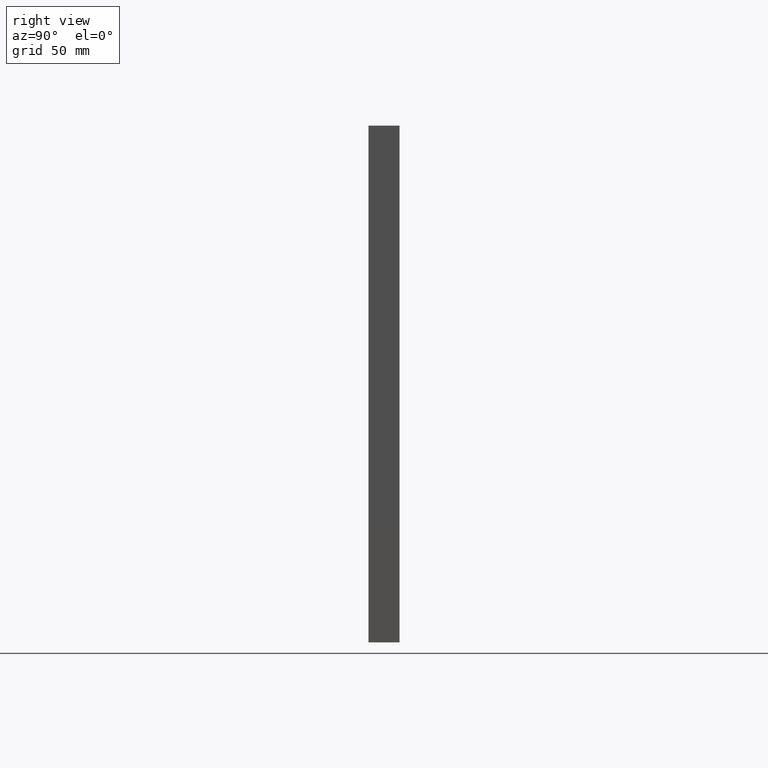
[diagram: clean part render]
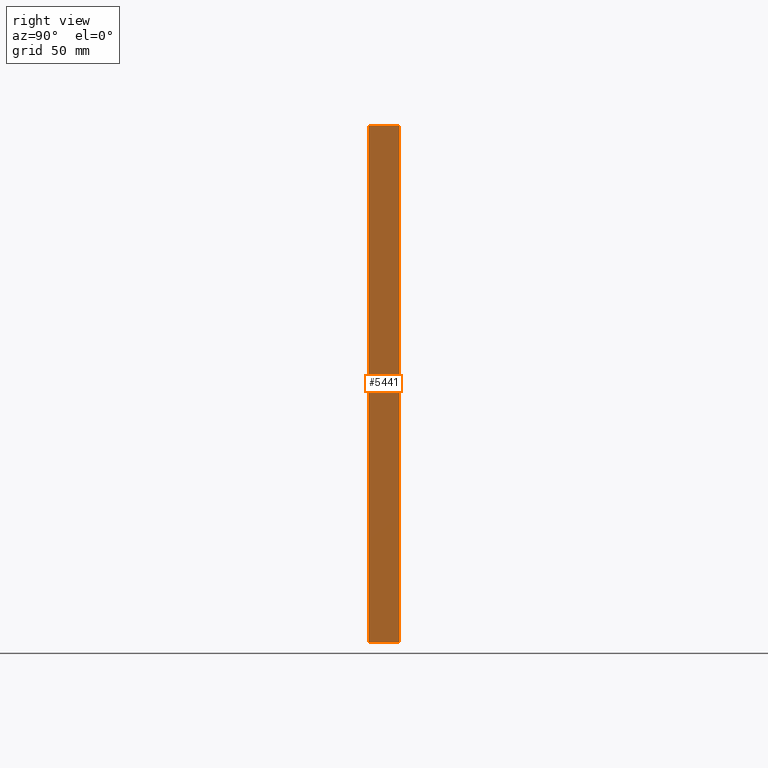
[diagram: same view with one face highlighted and labeled with its STEP entity id]
A machine part, right view. The second image highlights one B-rep face of the part: STEP entity #5441.
In plain terms, the highlighted planar face has unit normal (-1, 0, 0).
Its self-contained STEP definition (entity closure, byte-faithful):
#134 = CARTESIAN_POINT ( 'NONE',  ( 124.9999999999999858, 15.00000000000000000, -124.9999999999999858 ) ) ;
#280 = CARTESIAN_POINT ( 'NONE',  ( 125.0000000000000000, 15.00000000000000000, 124.9999999999999716 ) ) ;
#909 = ORIENTED_EDGE ( 'NONE', *, *, #4739, .F. ) ;
#1102 = EDGE_CURVE ( 'NONE', #12796, #1240, #6750, .T. ) ;
#1181 = VERTEX_POINT ( 'NONE', #8275 ) ;
#1240 = VERTEX_POINT ( 'NONE', #5107 ) ;
#1633 = LINE ( 'NONE', #5581, #12918 ) ;
#1736 = EDGE_LOOP ( 'NONE', ( #10372, #6550, #909, #13076 ) ) ;
#2268 = CARTESIAN_POINT ( 'NONE',  ( 125.0000000000000000, 15.00000000000000000, 124.9999999999999716 ) ) ;
#2335 = PLANE ( 'NONE',  #3927 ) ;
#3391 = LINE ( 'NONE', #7896, #8539 ) ;
#3469 = VERTEX_POINT ( 'NONE', #134 ) ;
#3927 = AXIS2_PLACEMENT_3D ( 'NONE', #7760, #8861, #6618 ) ;
#4609 = VECTOR ( 'NONE', #5189, 1000.000000000000000 ) ;
#4739 = EDGE_CURVE ( 'NONE', #12796, #3469, #3391, .T. ) ;
#5107 = CARTESIAN_POINT ( 'NONE',  ( 125.0000000000000000, 0.000000000000000000, 124.9999999999999716 ) ) ;
#5189 = DIRECTION ( 'NONE',  ( -5.551115123125783935E-17, -0.000000000000000000, -1.000000000000000000 ) ) ;
#5441 = ADVANCED_FACE ( 'NONE', ( #8856 ), #2335, .F. ) ;
#5581 = CARTESIAN_POINT ( 'NONE',  ( 124.9999999999999858, 15.00000000000000000, -124.9999999999999858 ) ) ;
#6550 = ORIENTED_EDGE ( 'NONE', *, *, #7898, .F. ) ;
#6618 = DIRECTION ( 'NONE',  ( 5.551115123125783935E-17, 0.000000000000000000, 1.000000000000000000 ) ) ;
#6732 = LINE ( 'NONE', #8310, #4609 ) ;
#6750 = LINE ( 'NONE', #2268, #11251 ) ;
#7760 = CARTESIAN_POINT ( 'NONE',  ( 124.9999999999999858, 15.00000000000000000, -124.9999999999999858 ) ) ;
#7896 = CARTESIAN_POINT ( 'NONE',  ( 124.9999999999999858, 15.00000000000000000, -124.9999999999999858 ) ) ;
#7898 = EDGE_CURVE ( 'NONE', #3469, #1181, #1633, .T. ) ;
#8275 = CARTESIAN_POINT ( 'NONE',  ( 124.9999999999999858, 0.000000000000000000, -124.9999999999999858 ) ) ;
#8310 = CARTESIAN_POINT ( 'NONE',  ( 124.9999999999999858, 0.000000000000000000, -124.9999999999999858 ) ) ;
#8539 = VECTOR ( 'NONE', #10145, 1000.000000000000000 ) ;
#8802 = DIRECTION ( 'NONE',  ( -0.000000000000000000, -1.000000000000000000, -0.000000000000000000 ) ) ;
#8856 = FACE_OUTER_BOUND ( 'NONE', #1736, .T. ) ;
#8861 = DIRECTION ( 'NONE',  ( -1.000000000000000000, 0.000000000000000000, 5.551115123125783935E-17 ) ) ;
#9025 = EDGE_CURVE ( 'NONE', #1240, #1181, #6732, .T. ) ;
#10145 = DIRECTION ( 'NONE',  ( -5.551115123125783935E-17, -0.000000000000000000, -1.000000000000000000 ) ) ;
#10372 = ORIENTED_EDGE ( 'NONE', *, *, #9025, .T. ) ;
#10785 = DIRECTION ( 'NONE',  ( -0.000000000000000000, -1.000000000000000000, -0.000000000000000000 ) ) ;
#11251 = VECTOR ( 'NONE', #10785, 1000.000000000000000 ) ;
#12796 = VERTEX_POINT ( 'NONE', #280 ) ;
#12918 = VECTOR ( 'NONE', #8802, 1000.000000000000000 ) ;
#13076 = ORIENTED_EDGE ( 'NONE', *, *, #1102, .T. ) ;